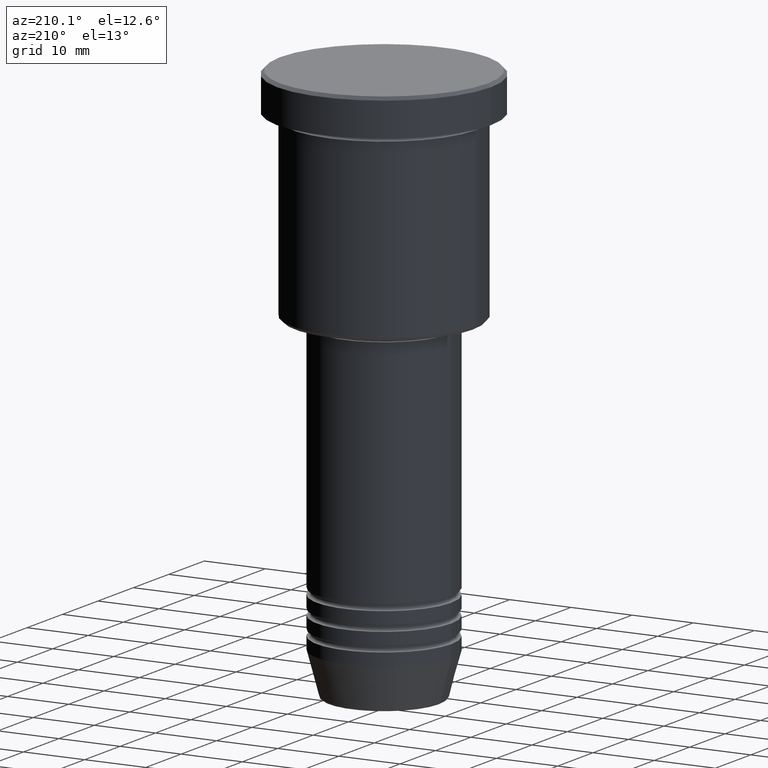
[diagram: clean part render]
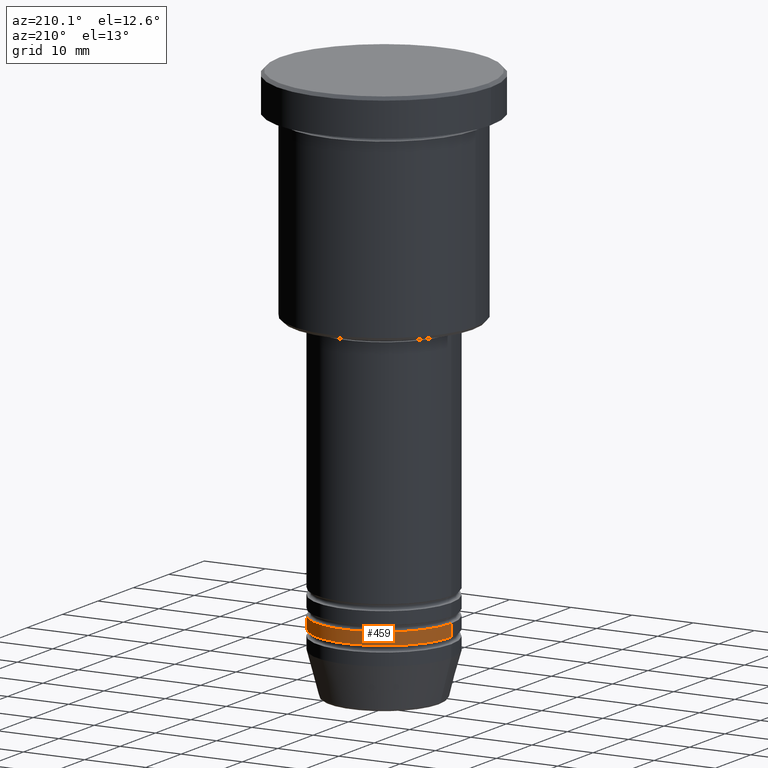
[diagram: same view with one face highlighted and labeled with its STEP entity id]
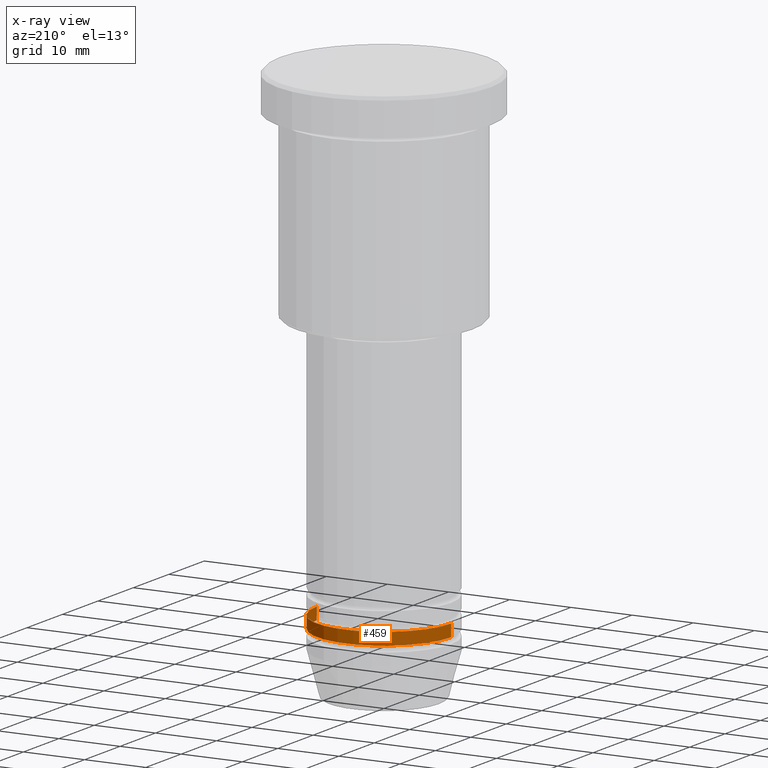
[diagram: x-ray of the same camera — body ghosted, the highlighted face saturated]
A machine part, auxiliary view. The second image highlights one B-rep face of the part: STEP entity #459.
The next image is the same camera in x-ray: the body ghosted, the highlighted face saturated — about 0% of this face is hidden behind the body in this view.
In plain terms, the highlighted cylindrical surface (partial cylindrical patch) has radius 11 mm, axis along (-0, -0, 1).
Its self-contained STEP definition (entity closure, byte-faithful):
#23 = DIRECTION ( 'NONE',  ( -0.000000000000000000, -0.000000000000000000, 1.000000000000000000 ) ) ;
#47 = VECTOR ( 'NONE', #23, 1000.000000000000000 ) ;
#50 = LINE ( 'NONE', #689, #887 ) ;
#65 = CARTESIAN_POINT ( 'NONE',  ( 0.000000000000000000, 0.000000000000000000, 0.000000000000000000 ) ) ;
#70 = EDGE_CURVE ( 'NONE', #755, #1142, #50, .T. ) ;
#78 = VERTEX_POINT ( 'NONE', #396 ) ;
#79 = CARTESIAN_POINT ( 'NONE',  ( -11.00000000000000000, 1.347111479062088405E-15, -78.99999999999997158 ) ) ;
#86 = ORIENTED_EDGE ( 'NONE', *, *, #371, .T. ) ;
#152 = ORIENTED_EDGE ( 'NONE', *, *, #70, .F. ) ;
#161 = VERTEX_POINT ( 'NONE', #79 ) ;
#227 = DIRECTION ( 'NONE',  ( -0.000000000000000000, -0.000000000000000000, 1.000000000000000000 ) ) ;
#230 = AXIS2_PLACEMENT_3D ( 'NONE', #65, #227, #320 ) ;
#257 = EDGE_CURVE ( 'NONE', #1142, #161, #282, .T. ) ;
#266 = CIRCLE ( 'NONE', #464, 11.00000000000000000 ) ;
#282 = CIRCLE ( 'NONE', #637, 11.00000000000000000 ) ;
#320 = DIRECTION ( 'NONE',  ( 1.000000000000000000, 0.000000000000000000, 0.000000000000000000 ) ) ;
#371 = EDGE_CURVE ( 'NONE', #755, #78, #266, .T. ) ;
#373 = DIRECTION ( 'NONE',  ( -0.000000000000000000, -0.000000000000000000, 1.000000000000000000 ) ) ;
#396 = CARTESIAN_POINT ( 'NONE',  ( -11.00000000000000000, 1.347111479062088405E-15, -80.99999999999997158 ) ) ;
#459 = ADVANCED_FACE ( 'NONE', ( #842 ), #738, .T. ) ;
#464 = AXIS2_PLACEMENT_3D ( 'NONE', #1129, #834, #728 ) ;
#512 = ORIENTED_EDGE ( 'NONE', *, *, #1128, .T. ) ;
#516 = ORIENTED_EDGE ( 'NONE', *, *, #257, .F. ) ;
#556 = CARTESIAN_POINT ( 'NONE',  ( 0.000000000000000000, 0.000000000000000000, -78.99999999999997158 ) ) ;
#637 = AXIS2_PLACEMENT_3D ( 'NONE', #556, #373, #1123 ) ;
#689 = CARTESIAN_POINT ( 'NONE',  ( 11.00000000000000000, 0.000000000000000000, 0.000000000000000000 ) ) ;
#728 = DIRECTION ( 'NONE',  ( 1.000000000000000000, 0.000000000000000000, 0.000000000000000000 ) ) ;
#738 = CYLINDRICAL_SURFACE ( 'NONE', #230, 11.00000000000000000 ) ;
#755 = VERTEX_POINT ( 'NONE', #907 ) ;
#834 = DIRECTION ( 'NONE',  ( -0.000000000000000000, -0.000000000000000000, 1.000000000000000000 ) ) ;
#842 = FACE_OUTER_BOUND ( 'NONE', #1061, .T. ) ;
#860 = CARTESIAN_POINT ( 'NONE',  ( 11.00000000000000000, 0.000000000000000000, -78.99999999999997158 ) ) ;
#887 = VECTOR ( 'NONE', #1071, 1000.000000000000000 ) ;
#907 = CARTESIAN_POINT ( 'NONE',  ( 11.00000000000000000, 0.000000000000000000, -80.99999999999997158 ) ) ;
#956 = CARTESIAN_POINT ( 'NONE',  ( -11.00000000000000000, 1.347111479062088405E-15, 0.000000000000000000 ) ) ;
#1061 = EDGE_LOOP ( 'NONE', ( #86, #512, #516, #152 ) ) ;
#1071 = DIRECTION ( 'NONE',  ( -0.000000000000000000, -0.000000000000000000, 1.000000000000000000 ) ) ;
#1123 = DIRECTION ( 'NONE',  ( 1.000000000000000000, 0.000000000000000000, 0.000000000000000000 ) ) ;
#1125 = LINE ( 'NONE', #956, #47 ) ;
#1128 = EDGE_CURVE ( 'NONE', #78, #161, #1125, .T. ) ;
#1129 = CARTESIAN_POINT ( 'NONE',  ( 0.000000000000000000, 0.000000000000000000, -80.99999999999997158 ) ) ;
#1142 = VERTEX_POINT ( 'NONE', #860 ) ;